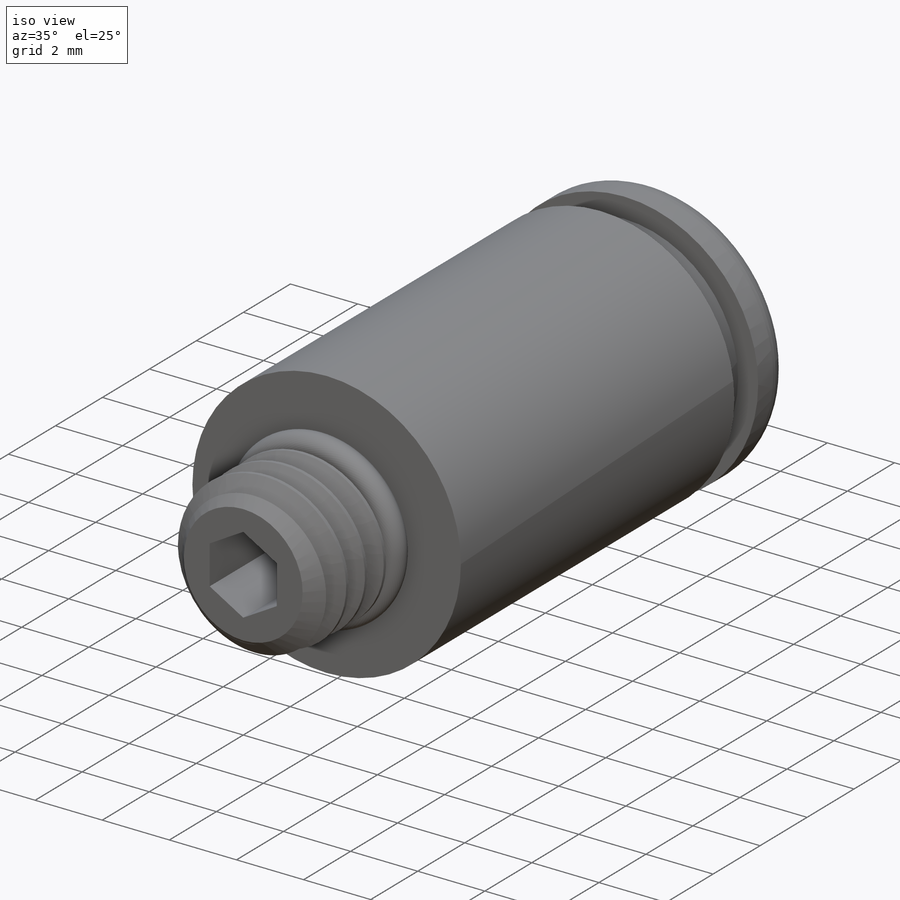
[diagram: iso view]
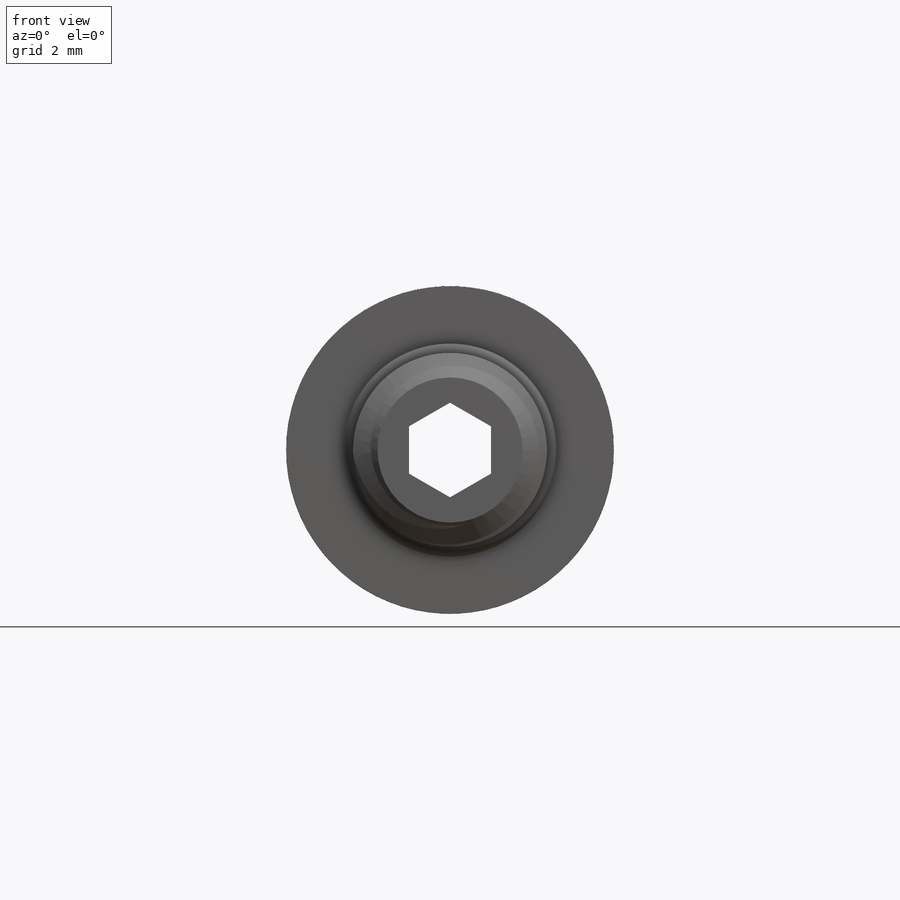
[diagram: front view]
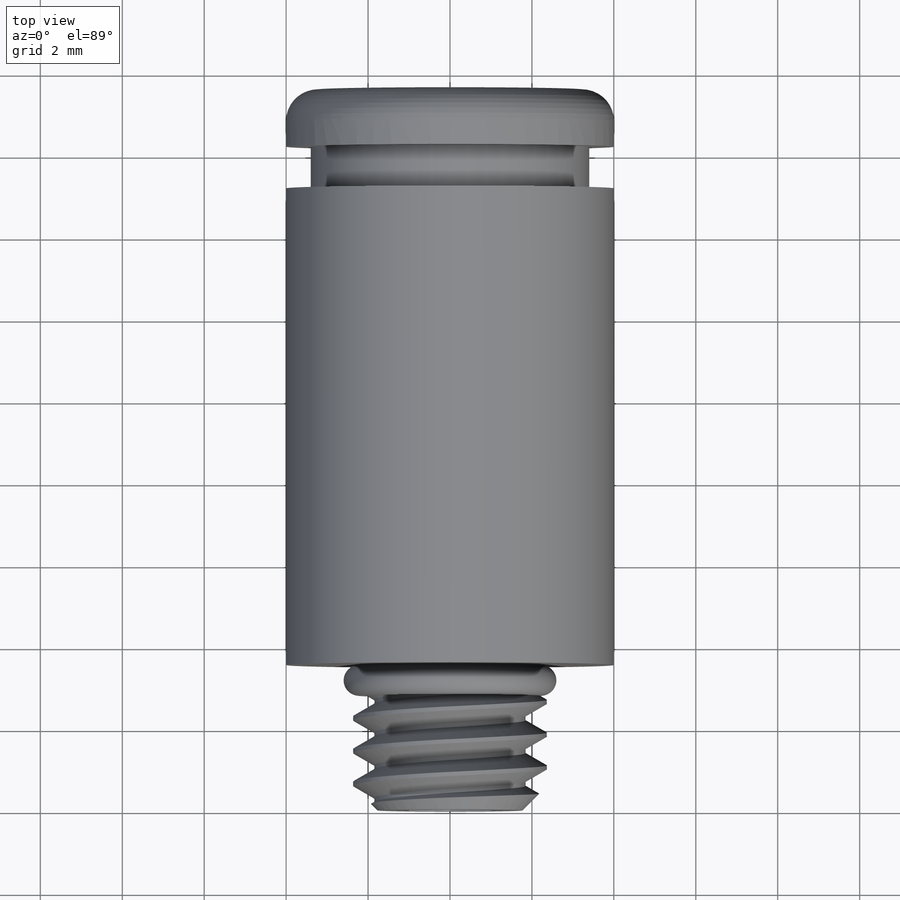
[diagram: top view]
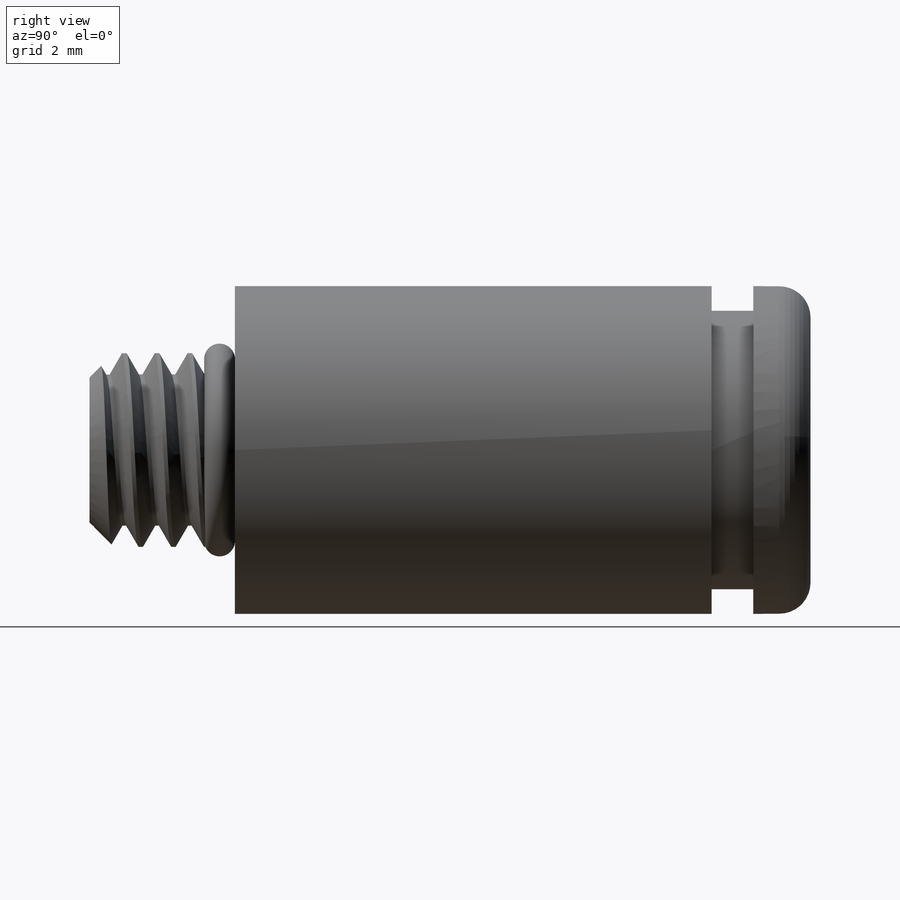
[diagram: right view]
SOLIDWORKS PART (.sldprt)
format: sldprt  version: not decoded by parser v0  size: 678,400 bytes
history: native  units: mm
features: sketch x11, extrude x2, revolve x2, cut_extrude x2, material x1, helix x1, sweep x1, cut_revolve x1 (+15 scaffold rows collapsed)
feature tree (36):
  scaffold x15  (default folders/planes/origin — collapsed)
  material  "Material <not specified>"
  sketch  "Sketch1"  dims[pipe od=5.0mm D1=~4.732238mm]
  extrude  "Extrude1"  Depth=4.3mm TL=4.3mm
  sketch  "Sketch2"
  helix  "Helix/Spiral1"  Pitch=13.25372mm pitch=0.8mm
  sketch  "SketchX"  dims[c1.D1=~6.70306mm c2.D1=~11.199122deg c2.D2=~1.783333deg c3.D2=~9.869599mm c3.D1=~4.732238mm c3.L1=17.6mm]
  sketch  "Sketch3"  dims[c1.D1=~3.36501mm c2.D1=60.0deg c2.D2=0.1mm c2.D3=0.4mm c2.D4=1.5875mm c3.D4=5.0deg]
  sweep  "Cut-Sweep1"
  sketch  "Sketch4"  dims[c1.D1=1.5875mm c2.D1=~1.783333deg c2.D2=~2.930708mm c3.D2=45.0deg c3.D3=0.8mm c3.D4=~1.418198mm c4.D4=45.0deg c4.D5=0.381mm c4.D6=~1.292008mm]
  cut_revolve  "Cut-Revolve1"  Angle=360deg
  sketch  "Sketch8"  dims[D4=0.762mm H=15.494mm tube od=8.0mm D1=1.397mm D2=1.016mm D3=6.8mm D7=0.381mm D=8.0mm D6=9.0mm L1=19.8mm A=17.5mm M=17.0mm Tube Size=4.0mm]
  revolve  "Revolve1"  Angle=360deg
  sketch  "Sketch12"  dims[D1=0.0mm]
  extrude  "Boss-Extrude1"  Depth=0.75mm
  sketch  "Sketch13"  dims[D1=0.75mm]
  revolve  "Revolve3"  Angle=360deg
  sketch  "Sketch11"
  cut_extrude  "Cut-Extrude4"  Depth=13.3mm M=13.3mm
  sketch  "Sketch9"  dims[H=2.0mm]
  cut_extrude  "Cut-Extrude1"  [1 undecoded]
  sketch  "Sketch10"
decode coverage: 15 of 20 modeling features carry decoded parameters
note: ~ marks probable driven/reference dimensions
note: 1 parameter value undecoded
note: suppression state not decoded; provenance and decode notes live in map.json
